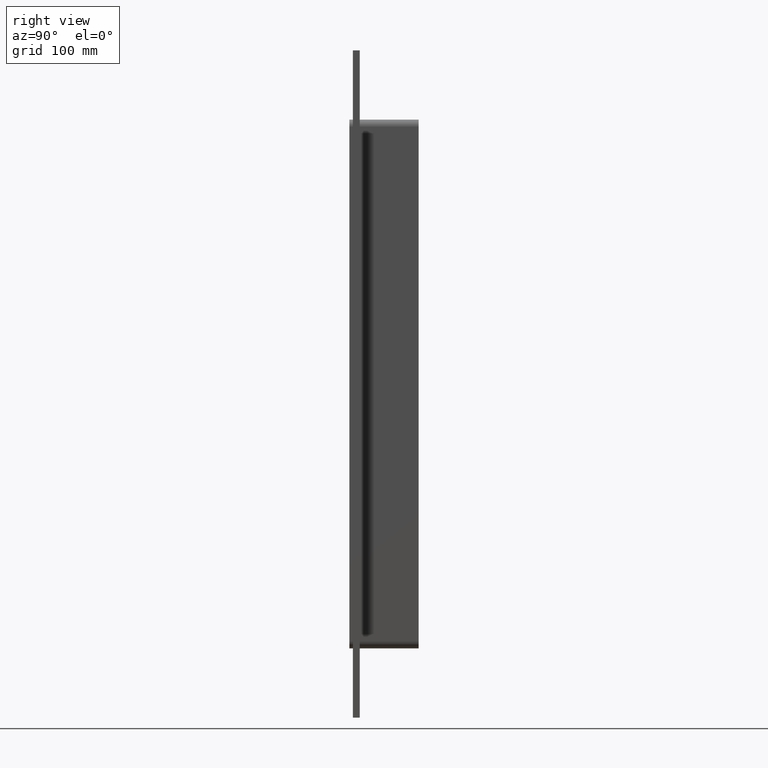
[diagram: clean part render]
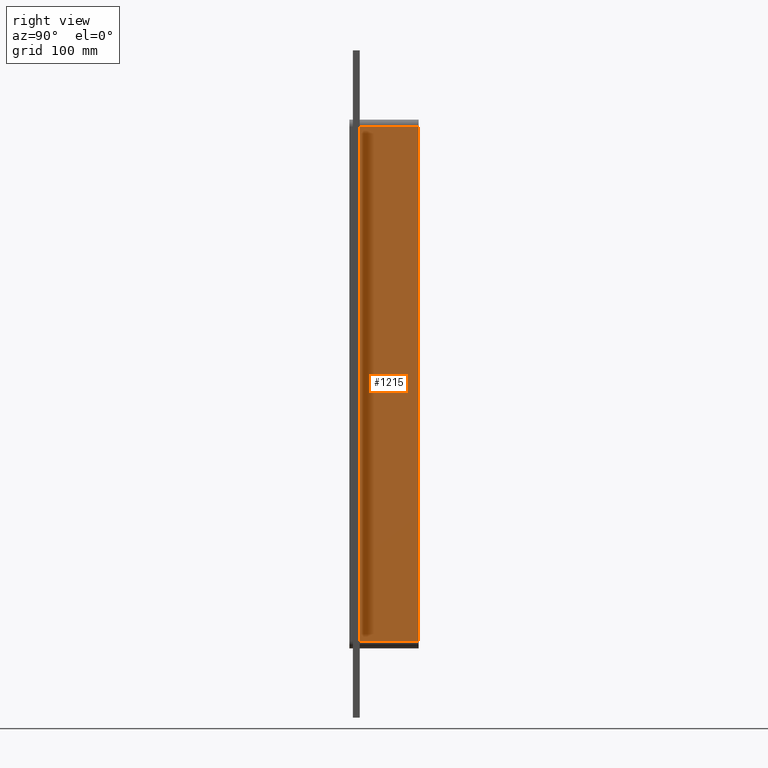
[diagram: same view with one face highlighted and labeled with its STEP entity id]
A machine part, right view. The second image highlights one B-rep face of the part: STEP entity #1215.
In plain terms, the highlighted planar face has unit normal (1, 0, 0).
Its self-contained STEP definition (entity closure, byte-faithful):
#795=CARTESIAN_POINT('',(66.25,6.000000000000001,-223.00000000000006));
#796=VERTEX_POINT('',#795);
#804=CARTESIAN_POINT('',(66.25,6.000000000000001,222.99999999999997));
#805=VERTEX_POINT('',#804);
#806=CARTESIAN_POINT('',(66.25,6.000000000000001,222.99999999999997));
#807=DIRECTION('',(0.0,0.0,-1.0));
#808=VECTOR('',#807,446.0);
#809=LINE('',#806,#808);
#810=EDGE_CURVE('',#805,#796,#809,.T.);
#1142=CARTESIAN_POINT('',(66.25,57.0,222.99999999999997));
#1143=VERTEX_POINT('',#1142);
#1144=CARTESIAN_POINT('',(66.25,6.000000000000001,222.99999999999997));
#1145=DIRECTION('',(0.0,1.0,0.0));
#1146=VECTOR('',#1145,51.0);
#1147=LINE('',#1144,#1146);
#1148=EDGE_CURVE('',#805,#1143,#1147,.T.);
#1192=CARTESIAN_POINT('',(66.25,0.0,229.0));
#1193=DIRECTION('',(1.0,0.0,0.0));
#1194=DIRECTION('',(0.0,0.0,-1.0));
#1195=AXIS2_PLACEMENT_3D('',#1192,#1193,#1194);
#1196=PLANE('',#1195);
#1197=ORIENTED_EDGE('',*,*,#810,.T.);
#1198=CARTESIAN_POINT('',(66.25,57.0,-223.00000000000006));
#1199=VERTEX_POINT('',#1198);
#1200=CARTESIAN_POINT('',(66.25,57.0,-223.00000000000006));
#1201=DIRECTION('',(0.0,-1.0,0.0));
#1202=VECTOR('',#1201,51.0);
#1203=LINE('',#1200,#1202);
#1204=EDGE_CURVE('',#1199,#796,#1203,.T.);
#1205=ORIENTED_EDGE('',*,*,#1204,.F.);
#1206=CARTESIAN_POINT('',(66.25,57.0,223.0));
#1207=DIRECTION('',(0.0,0.0,-1.0));
#1208=VECTOR('',#1207,446.0);
#1209=LINE('',#1206,#1208);
#1210=EDGE_CURVE('',#1143,#1199,#1209,.T.);
#1211=ORIENTED_EDGE('',*,*,#1210,.F.);
#1212=ORIENTED_EDGE('',*,*,#1148,.F.);
#1213=EDGE_LOOP('',(#1197,#1205,#1211,#1212));
#1214=FACE_OUTER_BOUND('',#1213,.T.);
#1215=ADVANCED_FACE('',(#1214),#1196,.T.);